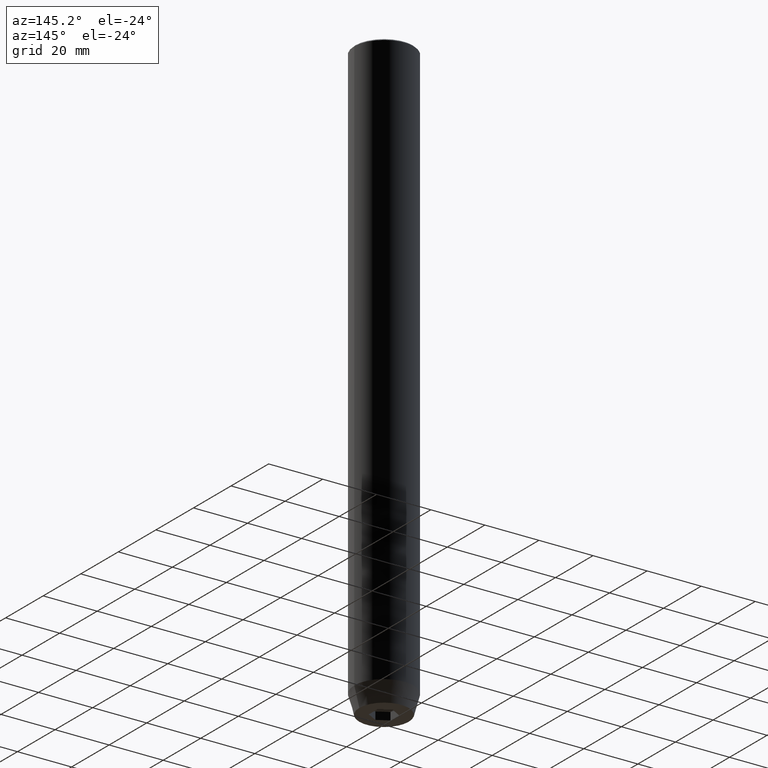
[diagram: clean part render]
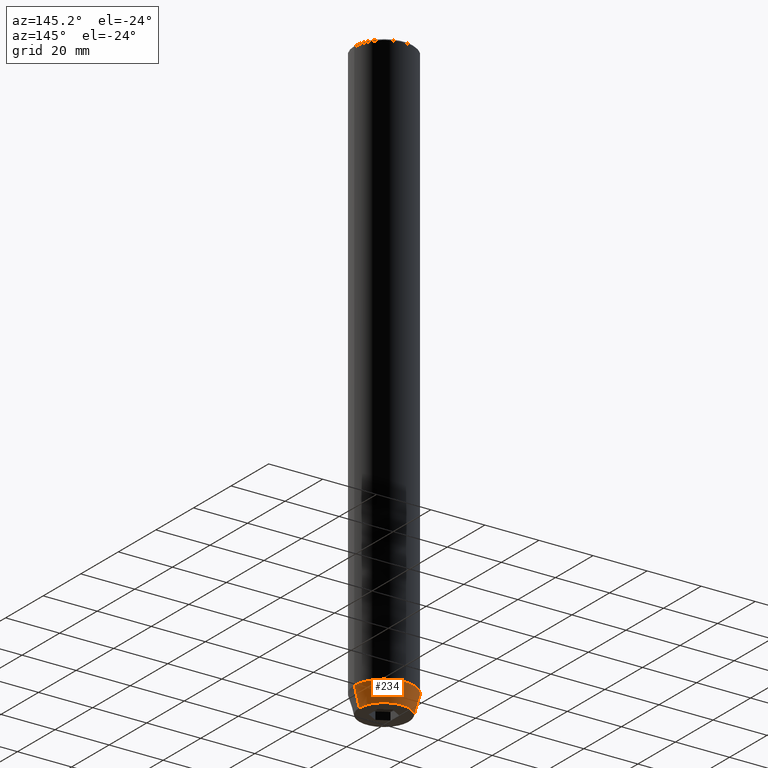
[diagram: same view with one face highlighted and labeled with its STEP entity id]
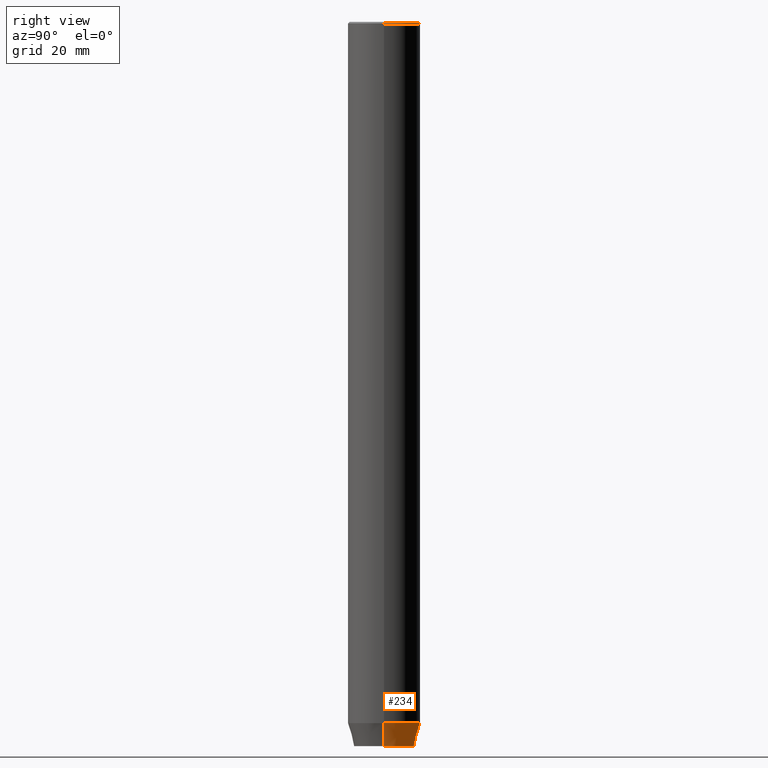
[diagram: same view with one face highlighted and labeled with its STEP entity id]
A machine part, auxiliary view. The second image highlights one B-rep face of the part: STEP entity #234.
A second angle (right view) of the same face is appended — the face is thin or edge-on in the first view.
In plain terms, the highlighted conical surface has half-angle 15 deg.
Its self-contained STEP definition (entity closure, byte-faithful):
#9 = LINE ( 'NONE', #421, #437 ) ;
#19 = EDGE_CURVE ( 'NONE', #83, #443, #28, .T. ) ;
#22 = EDGE_LOOP ( 'NONE', ( #80, #306, #399, #486 ) ) ;
#28 = CIRCLE ( 'NONE', #497, 11.00000000000000000 ) ;
#60 = CARTESIAN_POINT ( 'NONE',  ( 9.124355652982126585, 0.000000000000000000, -220.0000000000000000 ) ) ;
#66 = CIRCLE ( 'NONE', #176, 9.124355652982126585 ) ;
#67 = DIRECTION ( 'NONE',  ( -0.000000000000000000, -0.000000000000000000, 1.000000000000000000 ) ) ;
#79 = CARTESIAN_POINT ( 'NONE',  ( -9.124355652982126585, 1.232261386766375113E-15, -220.0000000000000000 ) ) ;
#80 = ORIENTED_EDGE ( 'NONE', *, *, #554, .T. ) ;
#83 = VERTEX_POINT ( 'NONE', #283 ) ;
#133 = CARTESIAN_POINT ( 'NONE',  ( -11.00000000000000000, 1.347111479062088405E-15, -212.9999999999999716 ) ) ;
#150 = CARTESIAN_POINT ( 'NONE',  ( 11.00000000000000000, 0.000000000000000000, -212.9999999999999716 ) ) ;
#176 = AXIS2_PLACEMENT_3D ( 'NONE', #197, #563, #471 ) ;
#187 = VECTOR ( 'NONE', #551, 1000.000000000000114 ) ;
#197 = CARTESIAN_POINT ( 'NONE',  ( 0.000000000000000000, 0.000000000000000000, -220.0000000000000000 ) ) ;
#214 = CONICAL_SURFACE ( 'NONE', #365, 11.00000000000000000, 0.2617993877991499629 ) ;
#226 = VERTEX_POINT ( 'NONE', #79 ) ;
#234 = ADVANCED_FACE ( 'NONE', ( #351 ), #214, .T. ) ;
#245 = LINE ( 'NONE', #150, #187 ) ;
#272 = VERTEX_POINT ( 'NONE', #60 ) ;
#283 = CARTESIAN_POINT ( 'NONE',  ( 11.00000000000000000, 0.000000000000000000, -212.9999999999999716 ) ) ;
#288 = CARTESIAN_POINT ( 'NONE',  ( 0.000000000000000000, 0.000000000000000000, -212.9999999999999716 ) ) ;
#306 = ORIENTED_EDGE ( 'NONE', *, *, #511, .T. ) ;
#331 = CARTESIAN_POINT ( 'NONE',  ( 0.000000000000000000, 0.000000000000000000, -212.9999999999999716 ) ) ;
#351 = FACE_OUTER_BOUND ( 'NONE', #22, .T. ) ;
#365 = AXIS2_PLACEMENT_3D ( 'NONE', #288, #67, #516 ) ;
#374 = DIRECTION ( 'NONE',  ( -0.2588190451025212391, 3.169619151431771721E-17, 0.9659258262890680902 ) ) ;
#399 = ORIENTED_EDGE ( 'NONE', *, *, #19, .F. ) ;
#421 = CARTESIAN_POINT ( 'NONE',  ( -11.00000000000000000, 1.347111479062088405E-15, -212.9999999999999716 ) ) ;
#426 = DIRECTION ( 'NONE',  ( 1.000000000000000000, 0.000000000000000000, 0.000000000000000000 ) ) ;
#437 = VECTOR ( 'NONE', #374, 1000.000000000000114 ) ;
#443 = VERTEX_POINT ( 'NONE', #133 ) ;
#471 = DIRECTION ( 'NONE',  ( 1.000000000000000000, 0.000000000000000000, 0.000000000000000000 ) ) ;
#486 = ORIENTED_EDGE ( 'NONE', *, *, #564, .F. ) ;
#497 = AXIS2_PLACEMENT_3D ( 'NONE', #331, #553, #426 ) ;
#511 = EDGE_CURVE ( 'NONE', #226, #443, #9, .T. ) ;
#516 = DIRECTION ( 'NONE',  ( 1.000000000000000000, 0.000000000000000000, 0.000000000000000000 ) ) ;
#551 = DIRECTION ( 'NONE',  ( 0.2588190451025212391, 0.000000000000000000, 0.9659258262890680902 ) ) ;
#553 = DIRECTION ( 'NONE',  ( -0.000000000000000000, -0.000000000000000000, 1.000000000000000000 ) ) ;
#554 = EDGE_CURVE ( 'NONE', #272, #226, #66, .T. ) ;
#563 = DIRECTION ( 'NONE',  ( -0.000000000000000000, -0.000000000000000000, 1.000000000000000000 ) ) ;
#564 = EDGE_CURVE ( 'NONE', #272, #83, #245, .T. ) ;